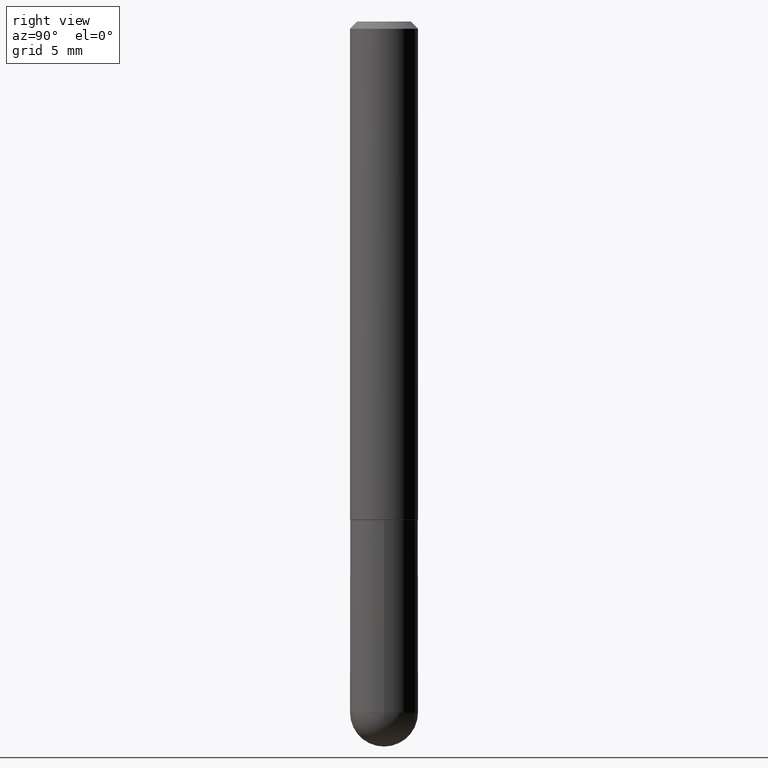
[diagram: clean part render]
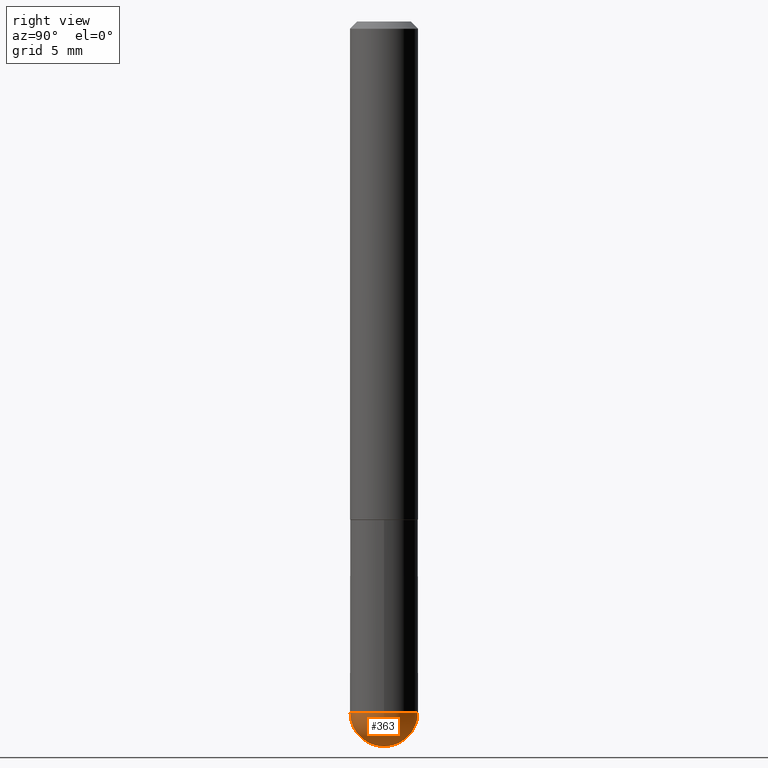
[diagram: same view with one face highlighted and labeled with its STEP entity id]
A machine part, right view. The second image highlights one B-rep face of the part: STEP entity #363.
In plain terms, the highlighted spherical surface has radius 2.3813 mm.
Its self-contained STEP definition (entity closure, byte-faithful):
#1 = CIRCLE ( 'NONE', #197, 0.09375000000000001388 ) ;
#8 = VERTEX_POINT ( 'NONE', #335 ) ;
#13 = ORIENTED_EDGE ( 'NONE', *, *, #230, .F. ) ;
#21 = AXIS2_PLACEMENT_3D ( 'NONE', #96, #255, #319 ) ;
#34 = DIRECTION ( 'NONE',  ( -2.445468806185136597E-29, 3.491481338843145583E-15, 1.000000000000000000 ) ) ;
#40 = EDGE_LOOP ( 'NONE', ( #233, #260, #42, #13 ) ) ;
#42 = ORIENTED_EDGE ( 'NONE', *, *, #312, .F. ) ;
#49 = CARTESIAN_POINT ( 'NONE',  ( -6.661338147750496494E-16, -0.09375000000000702216, -1.906249999999999556 ) ) ;
#54 = DIRECTION ( 'NONE',  ( -1.000000000000000000, 7.105427357601001070E-15, -4.926315508542082329E-29 ) ) ;
#60 = SPHERICAL_SURFACE ( 'NONE', #21, 0.09375000000000026368 ) ;
#61 = VERTEX_POINT ( 'NONE', #49 ) ;
#62 = DIRECTION ( 'NONE',  ( 1.000000000000000000, -6.982962677686265922E-15, 4.883557194083112340E-29 ) ) ;
#91 = DIRECTION ( 'NONE',  ( 1.000000000000000000, -6.982962677686261189E-15, 0.000000000000000000 ) ) ;
#96 = CARTESIAN_POINT ( 'NONE',  ( 4.330555133876530390E-29, -7.129818670309794948E-15, -1.906250000000000000 ) ) ;
#127 = FACE_OUTER_BOUND ( 'NONE', #40, .T. ) ;
#154 = EDGE_CURVE ( 'NONE', #381, #61, #352, .T. ) ;
#165 = DIRECTION ( 'NONE',  ( 6.982962677686265133E-15, 1.000000000000000000, 0.000000000000000000 ) ) ;
#197 = AXIS2_PLACEMENT_3D ( 'NONE', #323, #34, #315 ) ;
#202 = CIRCLE ( 'NONE', #394, 0.09375000000000026368 ) ;
#218 = DIRECTION ( 'NONE',  ( -7.105427357601001070E-15, -1.000000000000000000, 0.000000000000000000 ) ) ;
#230 = EDGE_CURVE ( 'NONE', #61, #305, #345, .T. ) ;
#232 = CARTESIAN_POINT ( 'NONE',  ( 0.09375000000000001388, -6.382864322572621901E-15, -1.906250000000000000 ) ) ;
#233 = ORIENTED_EDGE ( 'NONE', *, *, #154, .F. ) ;
#253 = CARTESIAN_POINT ( 'NONE',  ( 4.661674911790416638E-29, -6.655636302169745441E-15, -1.906250000000000000 ) ) ;
#255 = DIRECTION ( 'NONE',  ( -1.000000000000000000, 6.982962677686265133E-15, -4.883557194083112901E-29 ) ) ;
#257 = CARTESIAN_POINT ( 'NONE',  ( 4.563826426436916486E-29, -7.451404513955337857E-15, -2.000000000000000444 ) ) ;
#260 = ORIENTED_EDGE ( 'NONE', *, *, #353, .T. ) ;
#282 = CARTESIAN_POINT ( 'NONE',  ( 4.330555133876530390E-29, -7.129818670309794948E-15, -1.906250000000000000 ) ) ;
#284 = AXIS2_PLACEMENT_3D ( 'NONE', #282, #54, #218 ) ;
#305 = VERTEX_POINT ( 'NONE', #232 ) ;
#312 = EDGE_CURVE ( 'NONE', #305, #8, #1, .T. ) ;
#315 = DIRECTION ( 'NONE',  ( 1.000000000000000000, -6.982962677686261189E-15, 0.000000000000000000 ) ) ;
#319 = DIRECTION ( 'NONE',  ( 6.982962677686265133E-15, 1.000000000000000000, -2.913971193241872483E-15 ) ) ;
#323 = CARTESIAN_POINT ( 'NONE',  ( 4.661674911790416638E-29, -6.655636302169745441E-15, -1.906250000000000000 ) ) ;
#335 = CARTESIAN_POINT ( 'NONE',  ( 6.546527510331332580E-16, 0.09374999999999322764, -1.906250000000000222 ) ) ;
#345 = CIRCLE ( 'NONE', #401, 0.09375000000000001388 ) ;
#352 = CIRCLE ( 'NONE', #284, 0.09375000000000026368 ) ;
#353 = EDGE_CURVE ( 'NONE', #381, #8, #202, .T. ) ;
#363 = ADVANCED_FACE ( 'NONE', ( #127 ), #60, .T. ) ;
#378 = DIRECTION ( 'NONE',  ( -2.445468806185136597E-29, 3.491481338843145583E-15, 1.000000000000000000 ) ) ;
#381 = VERTEX_POINT ( 'NONE', #257 ) ;
#390 = CARTESIAN_POINT ( 'NONE',  ( 4.330555133876530390E-29, -7.129818670309794948E-15, -1.906250000000000000 ) ) ;
#394 = AXIS2_PLACEMENT_3D ( 'NONE', #390, #62, #165 ) ;
#401 = AXIS2_PLACEMENT_3D ( 'NONE', #253, #378, #91 ) ;